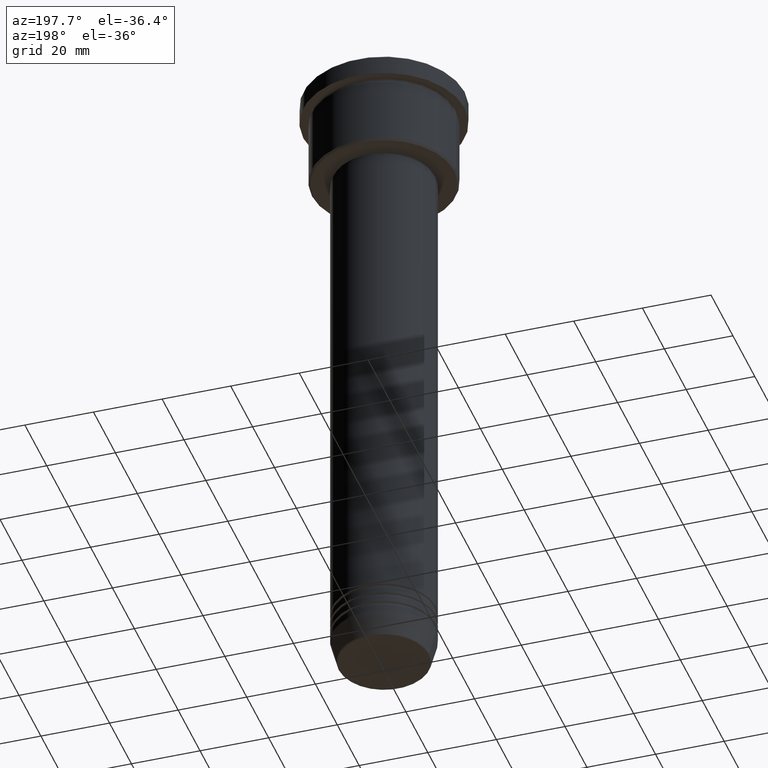
[diagram: clean part render]
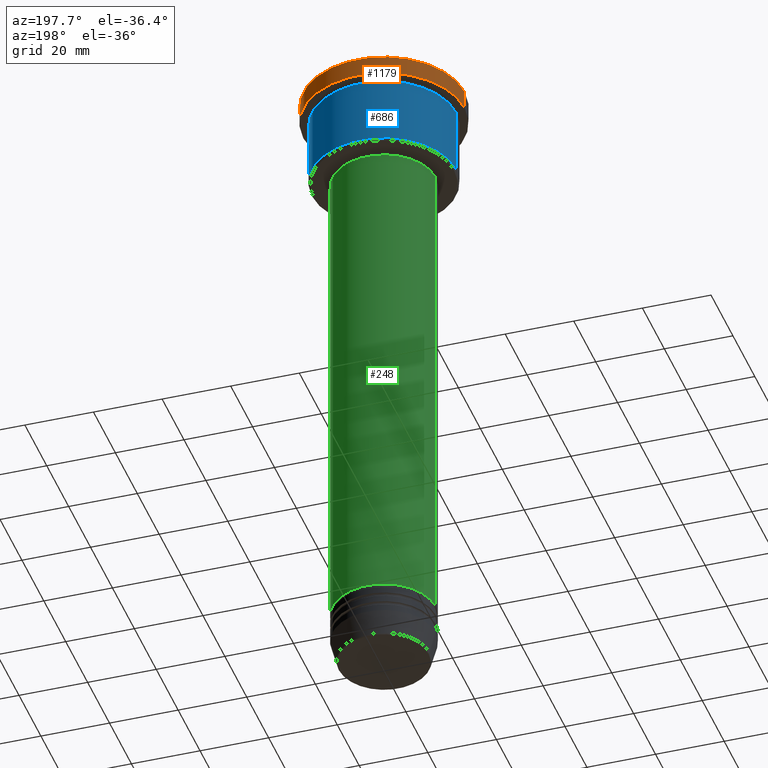
[diagram: same view with three faces highlighted in distinct colors, each labeled with its STEP entity id]
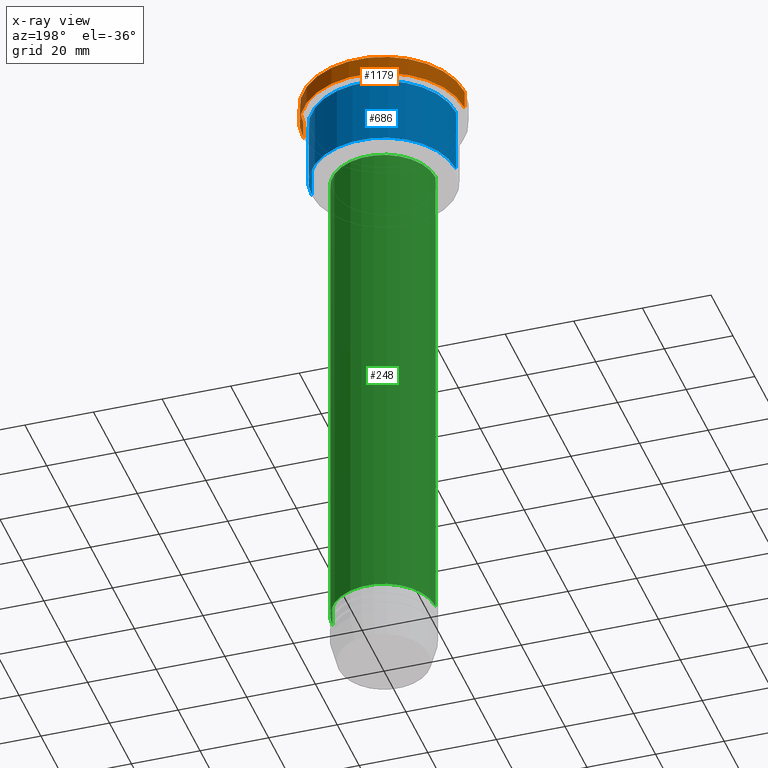
[diagram: x-ray of the same camera — body ghosted, the three highlighted faces saturated]
A machine part, auxiliary view with three faces highlighted in distinct colors.
The next image is the same camera in x-ray (body ghosted, the three faces saturated) — at least one of them is partly hidden behind the body in this view.
Their STEP definitions:

[orange] entity #1179 — the highlighted cylindrical surface (partial cylindrical patch) has radius 23.5 mm, axis along (-0, -0, 1).
#74 = LINE ( 'NONE', #621, #834 ) ;
#82 = CARTESIAN_POINT ( 'NONE',  ( 0.000000000000000000, 0.000000000000000000, 0.000000000000000000 ) ) ;
#153 = AXIS2_PLACEMENT_3D ( 'NONE', #943, #595, #417 ) ;
#186 = LINE ( 'NONE', #540, #916 ) ;
#240 = ORIENTED_EDGE ( 'NONE', *, *, #345, .T. ) ;
#242 = CARTESIAN_POINT ( 'NONE',  ( 23.50000000000000000, 0.000000000000000000, -0.5000000000000004441 ) ) ;
#256 = CIRCLE ( 'NONE', #153, 23.50000000000000000 ) ;
#277 = FACE_OUTER_BOUND ( 'NONE', #353, .T. ) ;
#286 = DIRECTION ( 'NONE',  ( -0.000000000000000000, -0.000000000000000000, 1.000000000000000000 ) ) ;
#323 = DIRECTION ( 'NONE',  ( 1.000000000000000000, 0.000000000000000000, 0.000000000000000000 ) ) ;
#324 = EDGE_CURVE ( 'NONE', #1137, #1136, #186, .T. ) ;
#345 = EDGE_CURVE ( 'NONE', #715, #1156, #74, .T. ) ;
#353 = EDGE_LOOP ( 'NONE', ( #693, #240, #408, #973 ) ) ;
#364 = CARTESIAN_POINT ( 'NONE',  ( -23.50000000000000000, 2.877919977996280320E-15, -5.999999999999994671 ) ) ;
#408 = ORIENTED_EDGE ( 'NONE', *, *, #631, .T. ) ;
#417 = DIRECTION ( 'NONE',  ( 1.000000000000000000, 0.000000000000000000, 0.000000000000000000 ) ) ;
#427 = DIRECTION ( 'NONE',  ( -0.000000000000000000, -0.000000000000000000, 1.000000000000000000 ) ) ;
#463 = DIRECTION ( 'NONE',  ( -0.000000000000000000, -0.000000000000000000, 1.000000000000000000 ) ) ;
#492 = AXIS2_PLACEMENT_3D ( 'NONE', #82, #463, #986 ) ;
#500 = CARTESIAN_POINT ( 'NONE',  ( -23.50000000000000000, 2.877919977996280320E-15, -0.5000000000000004441 ) ) ;
#505 = CARTESIAN_POINT ( 'NONE',  ( 0.000000000000000000, 0.000000000000000000, -5.999999999999994671 ) ) ;
#529 = CIRCLE ( 'NONE', #1009, 23.50000000000000000 ) ;
#540 = CARTESIAN_POINT ( 'NONE',  ( 23.50000000000000000, 0.000000000000000000, 0.000000000000000000 ) ) ;
#595 = DIRECTION ( 'NONE',  ( 0.000000000000000000, 0.000000000000000000, -1.000000000000000000 ) ) ;
#599 = CARTESIAN_POINT ( 'NONE',  ( 23.50000000000000000, 0.000000000000000000, -5.999999999999994671 ) ) ;
#621 = CARTESIAN_POINT ( 'NONE',  ( -23.50000000000000000, 2.877919977996280320E-15, 0.000000000000000000 ) ) ;
#631 = EDGE_CURVE ( 'NONE', #1156, #1136, #256, .T. ) ;
#693 = ORIENTED_EDGE ( 'NONE', *, *, #1086, .T. ) ;
#715 = VERTEX_POINT ( 'NONE', #364 ) ;
#815 = DIRECTION ( 'NONE',  ( -0.000000000000000000, -0.000000000000000000, 1.000000000000000000 ) ) ;
#834 = VECTOR ( 'NONE', #286, 1000.000000000000000 ) ;
#901 = CYLINDRICAL_SURFACE ( 'NONE', #492, 23.50000000000000000 ) ;
#916 = VECTOR ( 'NONE', #815, 1000.000000000000000 ) ;
#943 = CARTESIAN_POINT ( 'NONE',  ( 0.000000000000000000, 0.000000000000000000, -0.5000000000000004441 ) ) ;
#973 = ORIENTED_EDGE ( 'NONE', *, *, #324, .F. ) ;
#986 = DIRECTION ( 'NONE',  ( 1.000000000000000000, 0.000000000000000000, 0.000000000000000000 ) ) ;
#1009 = AXIS2_PLACEMENT_3D ( 'NONE', #505, #427, #323 ) ;
#1086 = EDGE_CURVE ( 'NONE', #1137, #715, #529, .T. ) ;
#1136 = VERTEX_POINT ( 'NONE', #242 ) ;
#1137 = VERTEX_POINT ( 'NONE', #599 ) ;
#1156 = VERTEX_POINT ( 'NONE', #500 ) ;
#1179 = ADVANCED_FACE ( 'NONE', ( #277 ), #901, .T. ) ;

[blue] entity #686 — the highlighted cylindrical surface (partial cylindrical patch) has radius 21 mm, axis along (-0, -0, 1).
#16 = CARTESIAN_POINT ( 'NONE',  ( 0.000000000000000000, 0.000000000000000000, -6.999999999999994671 ) ) ;
#31 = EDGE_CURVE ( 'NONE', #179, #785, #823, .T. ) ;
#45 = EDGE_CURVE ( 'NONE', #912, #670, #818, .T. ) ;
#66 = CARTESIAN_POINT ( 'NONE',  ( -21.00000000000000000, 2.571758278209441661E-15, -6.999999999999994671 ) ) ;
#87 = CARTESIAN_POINT ( 'NONE',  ( 21.00000000000000000, 0.000000000000000000, 0.000000000000000000 ) ) ;
#100 = ORIENTED_EDGE ( 'NONE', *, *, #1044, .F. ) ;
#108 = CARTESIAN_POINT ( 'NONE',  ( -21.00000000000000000, 2.571758278209441661E-15, 0.000000000000000000 ) ) ;
#148 = DIRECTION ( 'NONE',  ( -0.000000000000000000, -0.000000000000000000, 1.000000000000000000 ) ) ;
#179 = VERTEX_POINT ( 'NONE', #489 ) ;
#211 = CARTESIAN_POINT ( 'NONE',  ( 21.00000000000000000, 0.000000000000000000, -26.49999999999998934 ) ) ;
#228 = DIRECTION ( 'NONE',  ( -0.000000000000000000, -0.000000000000000000, 1.000000000000000000 ) ) ;
#241 = CIRCLE ( 'NONE', #920, 21.00000000000000000 ) ;
#380 = VECTOR ( 'NONE', #1087, 1000.000000000000000 ) ;
#382 = DIRECTION ( 'NONE',  ( -0.000000000000000000, -0.000000000000000000, 1.000000000000000000 ) ) ;
#414 = CIRCLE ( 'NONE', #432, 21.00000000000000000 ) ;
#432 = AXIS2_PLACEMENT_3D ( 'NONE', #1043, #1035, #770 ) ;
#436 = CYLINDRICAL_SURFACE ( 'NONE', #775, 21.00000000000000000 ) ;
#489 = CARTESIAN_POINT ( 'NONE',  ( -21.00000000000000000, 2.571758278209441661E-15, -26.49999999999998934 ) ) ;
#517 = DIRECTION ( 'NONE',  ( 1.000000000000000000, 0.000000000000000000, 0.000000000000000000 ) ) ;
#651 = EDGE_CURVE ( 'NONE', #912, #179, #414, .T. ) ;
#670 = VERTEX_POINT ( 'NONE', #952 ) ;
#686 = ADVANCED_FACE ( 'NONE', ( #1047 ), #436, .T. ) ;
#770 = DIRECTION ( 'NONE',  ( -1.000000000000000000, 0.000000000000000000, 0.000000000000000000 ) ) ;
#775 = AXIS2_PLACEMENT_3D ( 'NONE', #1151, #148, #517 ) ;
#779 = DIRECTION ( 'NONE',  ( 1.000000000000000000, 0.000000000000000000, 0.000000000000000000 ) ) ;
#785 = VERTEX_POINT ( 'NONE', #66 ) ;
#818 = LINE ( 'NONE', #87, #820 ) ;
#820 = VECTOR ( 'NONE', #382, 1000.000000000000000 ) ;
#823 = LINE ( 'NONE', #108, #380 ) ;
#912 = VERTEX_POINT ( 'NONE', #211 ) ;
#920 = AXIS2_PLACEMENT_3D ( 'NONE', #16, #228, #779 ) ;
#952 = CARTESIAN_POINT ( 'NONE',  ( 21.00000000000000000, 0.000000000000000000, -6.999999999999994671 ) ) ;
#974 = ORIENTED_EDGE ( 'NONE', *, *, #31, .T. ) ;
#990 = ORIENTED_EDGE ( 'NONE', *, *, #45, .F. ) ;
#1035 = DIRECTION ( 'NONE',  ( -0.000000000000000000, -0.000000000000000000, 1.000000000000000000 ) ) ;
#1043 = CARTESIAN_POINT ( 'NONE',  ( 0.000000000000000000, 0.000000000000000000, -26.49999999999998934 ) ) ;
#1044 = EDGE_CURVE ( 'NONE', #670, #785, #241, .T. ) ;
#1047 = FACE_OUTER_BOUND ( 'NONE', #1176, .T. ) ;
#1087 = DIRECTION ( 'NONE',  ( -0.000000000000000000, -0.000000000000000000, 1.000000000000000000 ) ) ;
#1106 = ORIENTED_EDGE ( 'NONE', *, *, #651, .T. ) ;
#1151 = CARTESIAN_POINT ( 'NONE',  ( 0.000000000000000000, 0.000000000000000000, 0.000000000000000000 ) ) ;
#1176 = EDGE_LOOP ( 'NONE', ( #1106, #974, #100, #990 ) ) ;

[green] entity #248 — the highlighted cylindrical surface (partial cylindrical patch) has radius 15 mm, axis along (-0, -0, 1).
#39 = AXIS2_PLACEMENT_3D ( 'NONE', #1158, #987, #357 ) ;
#69 = EDGE_CURVE ( 'NONE', #691, #878, #812, .T. ) ;
#107 = VERTEX_POINT ( 'NONE', #472 ) ;
#110 = LINE ( 'NONE', #193, #1132 ) ;
#119 = CARTESIAN_POINT ( 'NONE',  ( 15.00000000000000000, 0.000000000000000000, -28.00000000000000355 ) ) ;
#164 = DIRECTION ( 'NONE',  ( -0.000000000000000000, -0.000000000000000000, 1.000000000000000000 ) ) ;
#193 = CARTESIAN_POINT ( 'NONE',  ( -15.00000000000000000, 1.836970198721029589E-15, 0.000000000000000000 ) ) ;
#202 = ORIENTED_EDGE ( 'NONE', *, *, #903, .T. ) ;
#248 = ADVANCED_FACE ( 'NONE', ( #627 ), #1178, .T. ) ;
#299 = CIRCLE ( 'NONE', #946, 15.00000000000000000 ) ;
#357 = DIRECTION ( 'NONE',  ( 1.000000000000000000, 0.000000000000000000, 0.000000000000000000 ) ) ;
#472 = CARTESIAN_POINT ( 'NONE',  ( -15.00000000000000000, 1.836970198721029589E-15, -176.0000000000000000 ) ) ;
#627 = FACE_OUTER_BOUND ( 'NONE', #788, .T. ) ;
#638 = DIRECTION ( 'NONE',  ( -0.000000000000000000, -0.000000000000000000, 1.000000000000000000 ) ) ;
#641 = DIRECTION ( 'NONE',  ( -0.000000000000000000, -0.000000000000000000, 1.000000000000000000 ) ) ;
#691 = VERTEX_POINT ( 'NONE', #850 ) ;
#719 = CARTESIAN_POINT ( 'NONE',  ( 0.000000000000000000, 0.000000000000000000, -176.0000000000000000 ) ) ;
#720 = CARTESIAN_POINT ( 'NONE',  ( 0.000000000000000000, 0.000000000000000000, 0.000000000000000000 ) ) ;
#727 = VECTOR ( 'NONE', #641, 1000.000000000000000 ) ;
#745 = EDGE_CURVE ( 'NONE', #878, #1018, #873, .T. ) ;
#756 = CARTESIAN_POINT ( 'NONE',  ( -15.00000000000000000, 1.836970198721029589E-15, -28.00000000000000355 ) ) ;
#788 = EDGE_LOOP ( 'NONE', ( #1154, #202, #851, #1160 ) ) ;
#812 = LINE ( 'NONE', #1182, #727 ) ;
#831 = EDGE_CURVE ( 'NONE', #691, #107, #299, .T. ) ;
#850 = CARTESIAN_POINT ( 'NONE',  ( 15.00000000000000000, 0.000000000000000000, -176.0000000000000000 ) ) ;
#851 = ORIENTED_EDGE ( 'NONE', *, *, #745, .F. ) ;
#873 = CIRCLE ( 'NONE', #39, 15.00000000000000000 ) ;
#878 = VERTEX_POINT ( 'NONE', #119 ) ;
#888 = DIRECTION ( 'NONE',  ( 1.000000000000000000, 0.000000000000000000, 0.000000000000000000 ) ) ;
#903 = EDGE_CURVE ( 'NONE', #107, #1018, #110, .T. ) ;
#946 = AXIS2_PLACEMENT_3D ( 'NONE', #719, #638, #1068 ) ;
#987 = DIRECTION ( 'NONE',  ( -0.000000000000000000, -0.000000000000000000, 1.000000000000000000 ) ) ;
#1017 = DIRECTION ( 'NONE',  ( -0.000000000000000000, -0.000000000000000000, 1.000000000000000000 ) ) ;
#1018 = VERTEX_POINT ( 'NONE', #756 ) ;
#1020 = AXIS2_PLACEMENT_3D ( 'NONE', #720, #164, #888 ) ;
#1068 = DIRECTION ( 'NONE',  ( 1.000000000000000000, 0.000000000000000000, 0.000000000000000000 ) ) ;
#1132 = VECTOR ( 'NONE', #1017, 1000.000000000000000 ) ;
#1154 = ORIENTED_EDGE ( 'NONE', *, *, #831, .T. ) ;
#1158 = CARTESIAN_POINT ( 'NONE',  ( 0.000000000000000000, 0.000000000000000000, -28.00000000000000355 ) ) ;
#1160 = ORIENTED_EDGE ( 'NONE', *, *, #69, .F. ) ;
#1178 = CYLINDRICAL_SURFACE ( 'NONE', #1020, 15.00000000000000000 ) ;
#1182 = CARTESIAN_POINT ( 'NONE',  ( 15.00000000000000000, 0.000000000000000000, 0.000000000000000000 ) ) ;